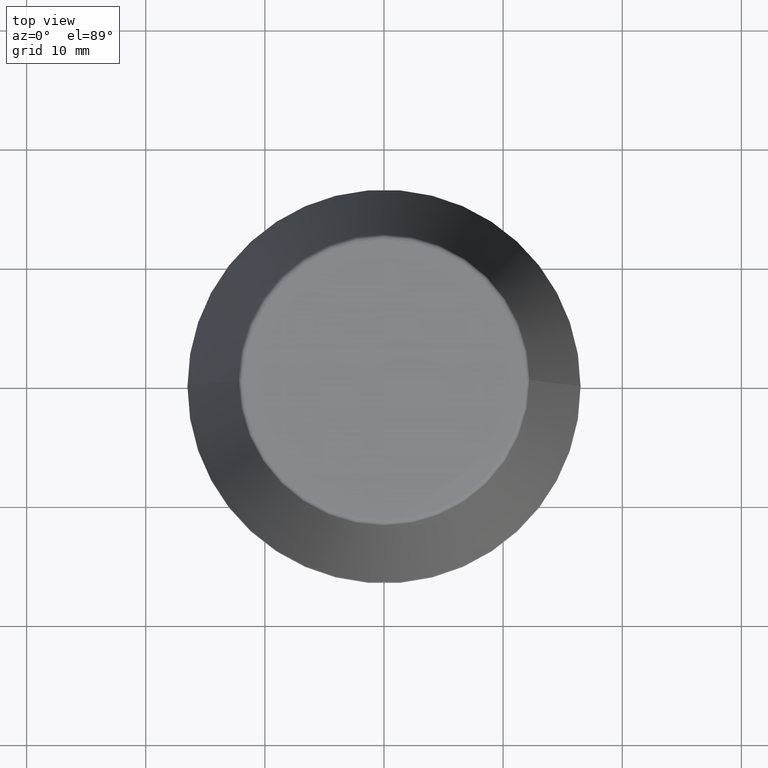
[diagram: clean part render]
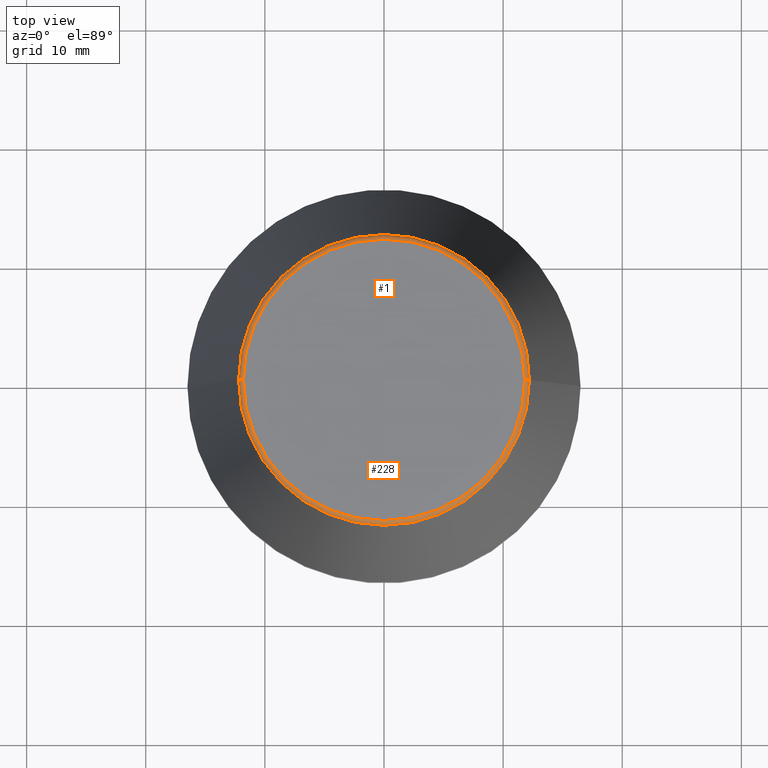
[diagram: same view with one multi-face feature highlighted, each face labeled with its STEP entity id]
A machine part, top view. The highlighted faces form ONE feature: a constant-radius fillet chain: 2 tangent blend faces with common blend radius 0.4 mm. The faces share edges in the B-rep.
Their STEP definitions:
[1] entity #1 (Torus):
#1 = ADVANCED_FACE ( 'NONE', ( #86 ), #58, .T. ) ;
#6 = EDGE_CURVE ( 'NONE', #21, #205, #277, .T. ) ;
#21 = VERTEX_POINT ( 'NONE', #42 ) ;
#42 = CARTESIAN_POINT ( 'NONE',  ( -12.20600611160694300, 0.0000000000000000000, 39.65566924038402900 ) ) ;
#43 = EDGE_CURVE ( 'NONE', #130, #249, #319, .T. ) ;
#51 = AXIS2_PLACEMENT_3D ( 'NONE', #304, #128, #186 ) ;
#58 = TOROIDAL_SURFACE ( 'NONE', #189, 11.80989888411031400, 0.4000000000000026900 ) ;
#79 = EDGE_CURVE ( 'NONE', #130, #21, #146, .T. ) ;
#86 = FACE_OUTER_BOUND ( 'NONE', #203, .T. ) ;
#108 = DIRECTION ( 'NONE',  ( 0.0000000000000000000, 0.0000000000000000000, -1.000000000000000000 ) ) ;
#120 = DIRECTION ( 'NONE',  ( 1.224646799147353200E-016, 1.000000000000000000, 0.0000000000000000000 ) ) ;
#124 = CARTESIAN_POINT ( 'NONE',  ( 0.0000000000000000000, 0.0000000000000000000, 40.00000000000000700 ) ) ;
#128 = DIRECTION ( 'NONE',  ( -0.0000000000000000000, -0.0000000000000000000, 1.000000000000000000 ) ) ;
#130 = VERTEX_POINT ( 'NONE', #352 ) ;
#140 = ORIENTED_EDGE ( 'NONE', *, *, #156, .F. ) ;
#146 = CIRCLE ( 'NONE', #51, 12.20600611160694300 ) ;
#149 = ORIENTED_EDGE ( 'NONE', *, *, #6, .T. ) ;
#156 = EDGE_CURVE ( 'NONE', #249, #205, #317, .T. ) ;
#174 = CARTESIAN_POINT ( 'NONE',  ( -11.80989888411031400, 1.446295486667959300E-015, 39.60000000000000100 ) ) ;
#186 = DIRECTION ( 'NONE',  ( 1.000000000000000000, 0.0000000000000000000, 0.0000000000000000000 ) ) ;
#189 = AXIS2_PLACEMENT_3D ( 'NONE', #252, #208, #225 ) ;
#191 = AXIS2_PLACEMENT_3D ( 'NONE', #385, #217, #108 ) ;
#203 = EDGE_LOOP ( 'NONE', ( #318, #149, #140, #351 ) ) ;
#205 = VERTEX_POINT ( 'NONE', #347 ) ;
#208 = DIRECTION ( 'NONE',  ( -0.0000000000000000000, -0.0000000000000000000, 1.000000000000000000 ) ) ;
#217 = DIRECTION ( 'NONE',  ( 0.0000000000000000000, -1.000000000000000000, 0.0000000000000000000 ) ) ;
#225 = DIRECTION ( 'NONE',  ( 1.000000000000000000, 0.0000000000000000000, 0.0000000000000000000 ) ) ;
#237 = CARTESIAN_POINT ( 'NONE',  ( 11.80989888411031400, 0.0000000000000000000, 40.00000000000000700 ) ) ;
#249 = VERTEX_POINT ( 'NONE', #237 ) ;
#252 = CARTESIAN_POINT ( 'NONE',  ( 0.0000000000000000000, 0.0000000000000000000, 39.60000000000000100 ) ) ;
#277 = CIRCLE ( 'NONE', #310, 0.4000000000000028000 ) ;
#294 = DIRECTION ( 'NONE',  ( -0.0000000000000000000, -0.0000000000000000000, 1.000000000000000000 ) ) ;
#304 = CARTESIAN_POINT ( 'NONE',  ( 0.0000000000000000000, 0.0000000000000000000, 39.65566924038402900 ) ) ;
#310 = AXIS2_PLACEMENT_3D ( 'NONE', #174, #120, #368 ) ;
#317 = CIRCLE ( 'NONE', #370, 11.80989888411031400 ) ;
#318 = ORIENTED_EDGE ( 'NONE', *, *, #79, .T. ) ;
#319 = CIRCLE ( 'NONE', #191, 0.4000000000000045200 ) ;
#328 = DIRECTION ( 'NONE',  ( 1.000000000000000000, 0.0000000000000000000, 0.0000000000000000000 ) ) ;
#347 = CARTESIAN_POINT ( 'NONE',  ( -11.80989888411031400, 1.470550059081603400E-015, 40.00000000000000700 ) ) ;
#351 = ORIENTED_EDGE ( 'NONE', *, *, #43, .F. ) ;
#352 = CARTESIAN_POINT ( 'NONE',  ( 12.20600611160694300, 1.757755848304969800E-015, 39.65566924038402900 ) ) ;
#368 = DIRECTION ( 'NONE',  ( -1.000000000000000000, 1.224646799147352500E-016, 0.0000000000000000000 ) ) ;
#370 = AXIS2_PLACEMENT_3D ( 'NONE', #124, #294, #328 ) ;
#385 = CARTESIAN_POINT ( 'NONE',  ( 11.80989888411031400, 0.0000000000000000000, 39.60000000000000100 ) ) ;
[2] entity #228 (Torus):
#2 = ORIENTED_EDGE ( 'NONE', *, *, #282, .F. ) ;
#6 = EDGE_CURVE ( 'NONE', #21, #205, #277, .T. ) ;
#16 = CIRCLE ( 'NONE', #101, 12.20600611160694300 ) ;
#21 = VERTEX_POINT ( 'NONE', #42 ) ;
#42 = CARTESIAN_POINT ( 'NONE',  ( -12.20600611160694300, 0.0000000000000000000, 39.65566924038402900 ) ) ;
#43 = EDGE_CURVE ( 'NONE', #130, #249, #319, .T. ) ;
#55 = ORIENTED_EDGE ( 'NONE', *, *, #43, .T. ) ;
#97 = DIRECTION ( 'NONE',  ( 1.000000000000000000, 0.0000000000000000000, 0.0000000000000000000 ) ) ;
#101 = AXIS2_PLACEMENT_3D ( 'NONE', #102, #234, #344 ) ;
#102 = CARTESIAN_POINT ( 'NONE',  ( 0.0000000000000000000, 0.0000000000000000000, 39.65566924038402900 ) ) ;
#108 = DIRECTION ( 'NONE',  ( 0.0000000000000000000, 0.0000000000000000000, -1.000000000000000000 ) ) ;
#120 = DIRECTION ( 'NONE',  ( 1.224646799147353200E-016, 1.000000000000000000, 0.0000000000000000000 ) ) ;
#130 = VERTEX_POINT ( 'NONE', #352 ) ;
#155 = CARTESIAN_POINT ( 'NONE',  ( 0.0000000000000000000, 0.0000000000000000000, 39.60000000000000100 ) ) ;
#174 = CARTESIAN_POINT ( 'NONE',  ( -11.80989888411031400, 1.446295486667959300E-015, 39.60000000000000100 ) ) ;
#185 = CIRCLE ( 'NONE', #226, 11.80989888411031400 ) ;
#191 = AXIS2_PLACEMENT_3D ( 'NONE', #385, #217, #108 ) ;
#192 = DIRECTION ( 'NONE',  ( -0.0000000000000000000, -0.0000000000000000000, 1.000000000000000000 ) ) ;
#202 = TOROIDAL_SURFACE ( 'NONE', #348, 11.80989888411031400, 0.4000000000000026900 ) ;
#205 = VERTEX_POINT ( 'NONE', #347 ) ;
#217 = DIRECTION ( 'NONE',  ( 0.0000000000000000000, -1.000000000000000000, 0.0000000000000000000 ) ) ;
#226 = AXIS2_PLACEMENT_3D ( 'NONE', #359, #192, #283 ) ;
#228 = ADVANCED_FACE ( 'NONE', ( #266 ), #202, .T. ) ;
#234 = DIRECTION ( 'NONE',  ( -0.0000000000000000000, -0.0000000000000000000, 1.000000000000000000 ) ) ;
#237 = CARTESIAN_POINT ( 'NONE',  ( 11.80989888411031400, 0.0000000000000000000, 40.00000000000000700 ) ) ;
#249 = VERTEX_POINT ( 'NONE', #237 ) ;
#258 = EDGE_CURVE ( 'NONE', #21, #130, #16, .T. ) ;
#266 = FACE_OUTER_BOUND ( 'NONE', #373, .T. ) ;
#277 = CIRCLE ( 'NONE', #310, 0.4000000000000028000 ) ;
#282 = EDGE_CURVE ( 'NONE', #205, #249, #185, .T. ) ;
#283 = DIRECTION ( 'NONE',  ( 1.000000000000000000, 0.0000000000000000000, 0.0000000000000000000 ) ) ;
#288 = ORIENTED_EDGE ( 'NONE', *, *, #6, .F. ) ;
#310 = AXIS2_PLACEMENT_3D ( 'NONE', #174, #120, #368 ) ;
#319 = CIRCLE ( 'NONE', #191, 0.4000000000000045200 ) ;
#344 = DIRECTION ( 'NONE',  ( 1.000000000000000000, 0.0000000000000000000, 0.0000000000000000000 ) ) ;
#347 = CARTESIAN_POINT ( 'NONE',  ( -11.80989888411031400, 1.470550059081603400E-015, 40.00000000000000700 ) ) ;
#348 = AXIS2_PLACEMENT_3D ( 'NONE', #155, #378, #97 ) ;
#352 = CARTESIAN_POINT ( 'NONE',  ( 12.20600611160694300, 1.757755848304969800E-015, 39.65566924038402900 ) ) ;
#359 = CARTESIAN_POINT ( 'NONE',  ( 0.0000000000000000000, 0.0000000000000000000, 40.00000000000000700 ) ) ;
#365 = ORIENTED_EDGE ( 'NONE', *, *, #258, .T. ) ;
#368 = DIRECTION ( 'NONE',  ( -1.000000000000000000, 1.224646799147352500E-016, 0.0000000000000000000 ) ) ;
#373 = EDGE_LOOP ( 'NONE', ( #288, #365, #55, #2 ) ) ;
#378 = DIRECTION ( 'NONE',  ( -0.0000000000000000000, -0.0000000000000000000, 1.000000000000000000 ) ) ;
#385 = CARTESIAN_POINT ( 'NONE',  ( 11.80989888411031400, 0.0000000000000000000, 39.60000000000000100 ) ) ;